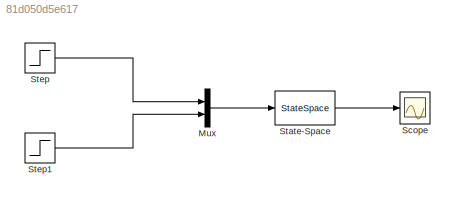
MODEL slx_81d050d5e617
KIND model
CONFIG AbsTol = auto
CONFIG EnableMultiTasking = off
CONFIG FixedStep = auto
CONFIG MaxStep = auto
CONFIG MinStep = auto
CONFIG RelTol = 1e-3
CONFIG SampleTimeConstraint = Unconstrained
CONFIG SolverName = VariableStepAuto
CONFIG StartTime = 0.0
CONFIG StopTime = 30
BLOCK [Mux] Mux
  DisplayOption = bar
  Inputs = 2
  Ports = [2, 1]
BLOCK [Scope] Scope
  Floating = off
  NumInputPorts = 1
  Ports = [1]
  ScopeSpecificationString = Simulink.scopes.TimeScopeBlockCfg('CurrentConfiguration', extmgr.ConfigurationSet(extmgr.Configuration('Core','General UI',true),extmgr.Configuration('Core','Source UI',true),extmgr.Configuration('Sources','WiredSimulink',true),extmgr.Configuration('Visuals','Time Domain',true,'SerializedDisplays',{struct('MinYLimReal','0.13535','MaxYLimReal','18.47287','YLabelReal','','MinYLimMag','0.13535','MaxY...<+2230ch>
BLOCK [StateSpace] State-Space
  A = [-0.5572 -0.7814; 0.7814 0]
  B = [1 -1; 0 2]
  C = [1.9691 6.4493]
  D = [0 0]
  InitialCondition = [1; 0]
  Ports = [1, 1]
BLOCK [Step] Step
  SampleTime = 0
BLOCK [Step] Step1
  SampleTime = 0
LINE Mux:1 -> State-Space:1
LINE State-Space:1 -> Scope:1
LINE Step1:1 -> Mux:2
LINE Step:1 -> Mux:1
